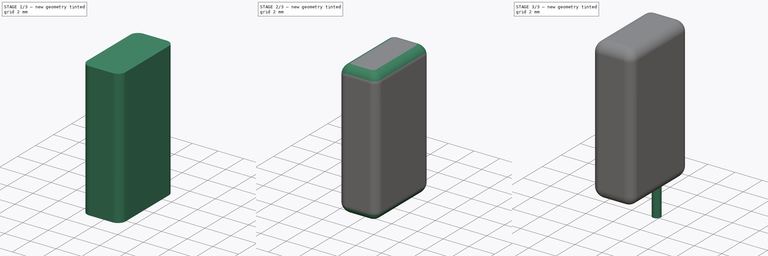
[diagram: build sequence overview — one tinted view per stage of 3, left to right]
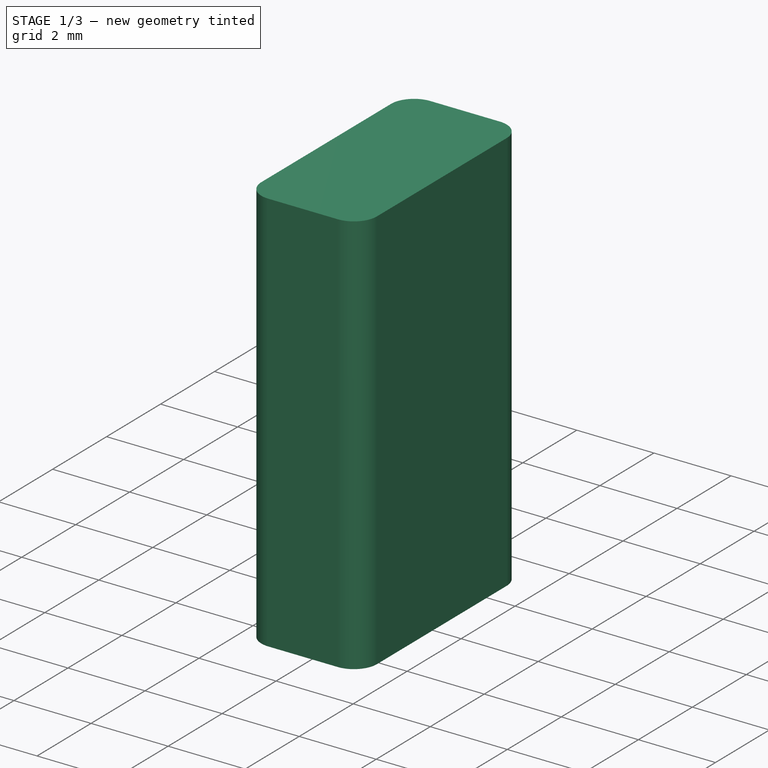
[diagram: stage 1 of 3 — iso view after this stage's code; geometry added in this stage tinted green]
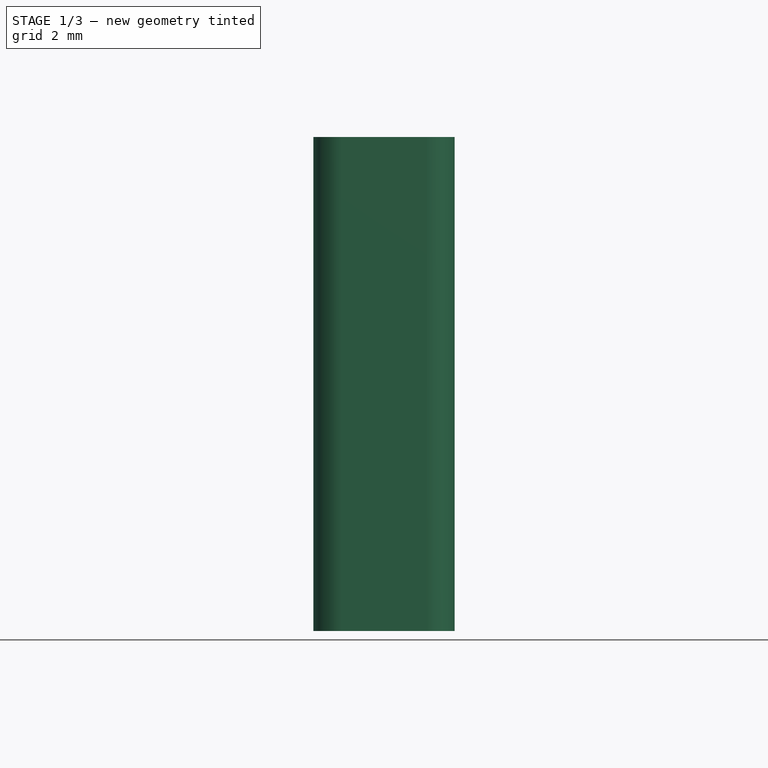
[diagram: stage 1 of 3 — front view after this stage's code; geometry added in this stage tinted green]
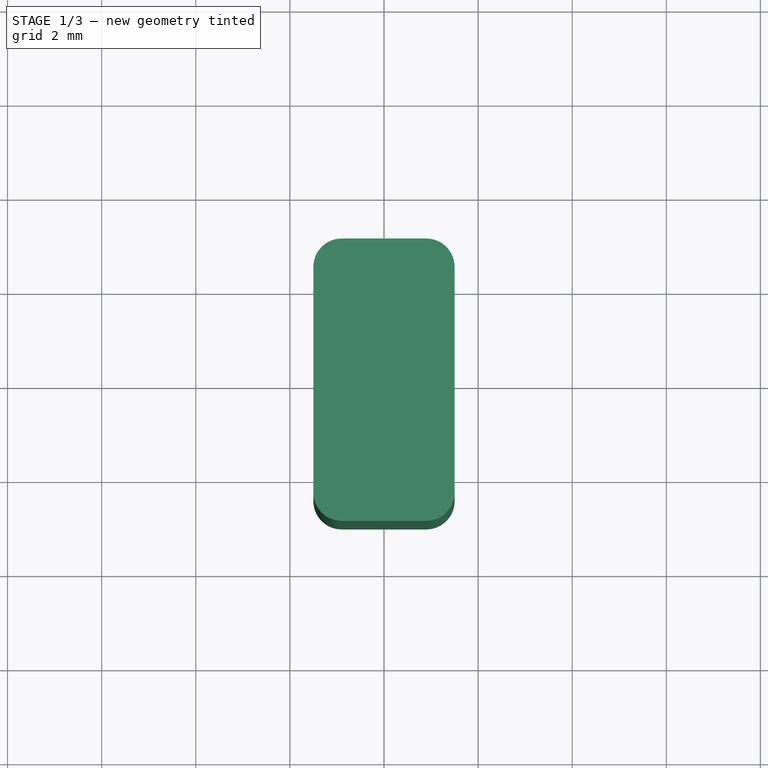
[diagram: stage 1 of 3 — top view after this stage's code; geometry added in this stage tinted green]
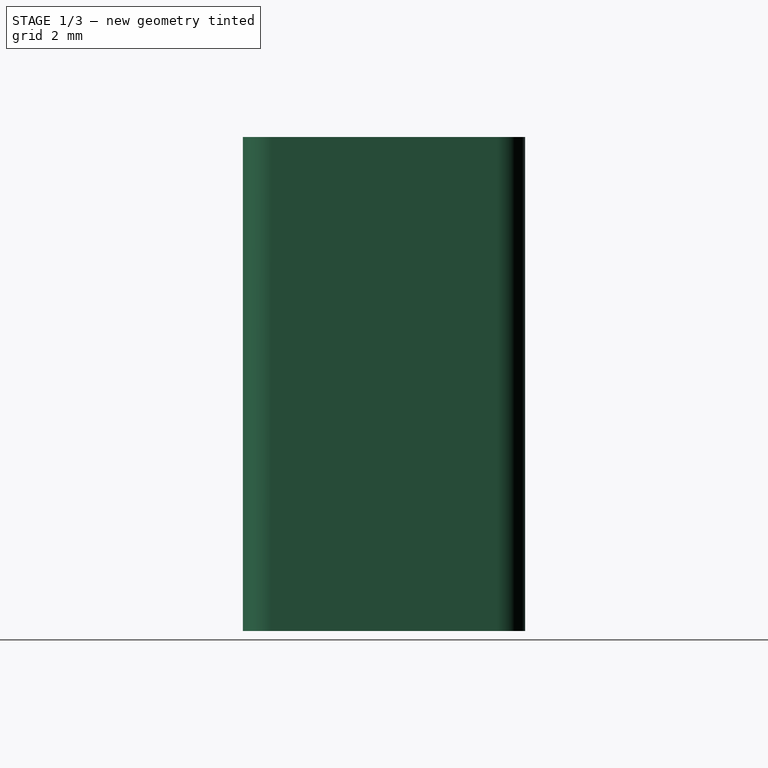
[diagram: stage 1 of 3 — right view after this stage's code; geometry added in this stage tinted green]
FCSTD DOCUMENT  (FreeCAD 0.19R16945 (Git))
Label: Greenie Capacitors
License: All rights reserved
LicenseURL: http://en.wikipedia.org/wiki/All_rights_reserved
objects: PartDesign::Body×3, Sketcher::SketchObject×2, PartDesign::Pad×2, PartDesign::Fillet×2, PartDesign::FeatureBase×1, Spreadsheet::Sheet×1
note: 12 computed .brp shape members not serialized (recipe doc carries the construction recipe); baked Part::Feature solids carry a one-line shape summary decoded from their .brp

FEATURE [Sketcher::SketchObject] Sketch
  MapMode = 5
  Placement = pos=(0,0,0) rot=(0.57735,0.57735,0.57735;2.0944rad)
  Support = -> [YZ_Plane]
  expr: Constraints[10] = Spreadsheet.height
  expr: Constraints[9] = Spreadsheet.width
  sketch-geometry (4):
    g0: LineSegment StartX=-3 StartY=0 StartZ=0 EndX=3 EndY=2e-16 EndZ=0
    g1: LineSegment StartX=3 StartY=2e-16 StartZ=0 EndX=3 EndY=10.5 EndZ=0
    g2: LineSegment StartX=3 StartY=10.5 StartZ=0 EndX=-3 EndY=10.5 EndZ=0
    g3: LineSegment StartX=-3 StartY=10.5 StartZ=0 EndX=-3 EndY=0 EndZ=0
  constraints (11):
    c: Coincident(g0,g1)
    c: Coincident(g1,g2)
    c: Coincident(g2,g3)
    c: Coincident(g3,g0)
    c: Horizontal(g2)
    c: Vertical(g1)
    c: Vertical(g3)
    c: PointOnObject(g0,g-1)
    c: Symmetric(g0,g0,g-2)
    c: DistanceX(g2,g2) = 6
    c: DistanceY(g1,g1) = 10.5
FEATURE [PartDesign::Pad] Pad
  Length = 3
  Length2 = 100
  Midplane = true
  Placement = pos=(0,0,0) rot=(0.57735,0.57735,0.57735;2.0944rad)
  Profile = -> Sketch
  Type = 0
  expr: Length = Spreadsheet.thickness
FEATURE [PartDesign::Fillet] Fillet
  Base = -> Pad [Edge6,Edge11,Edge7,Edge12]
  BaseFeature = -> Pad
  Placement = pos=(0,0,0) rot=(0.57735,0.57735,0.57735;2.0944rad)
  Radius = 0.6
  expr: Radius = Spreadsheet.filletw
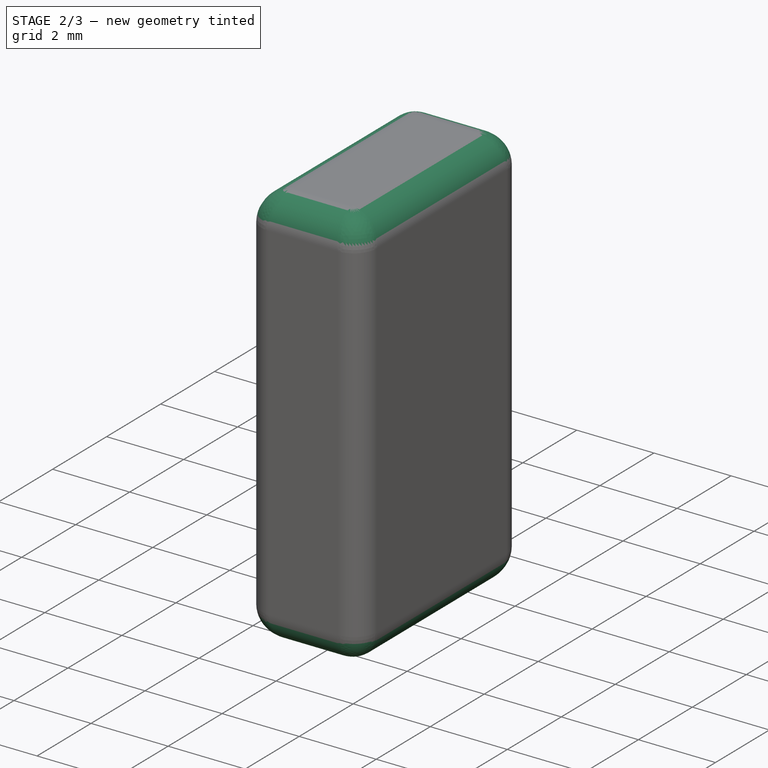
[diagram: stage 2 of 3 — iso view after this stage's code; geometry added in this stage tinted green]
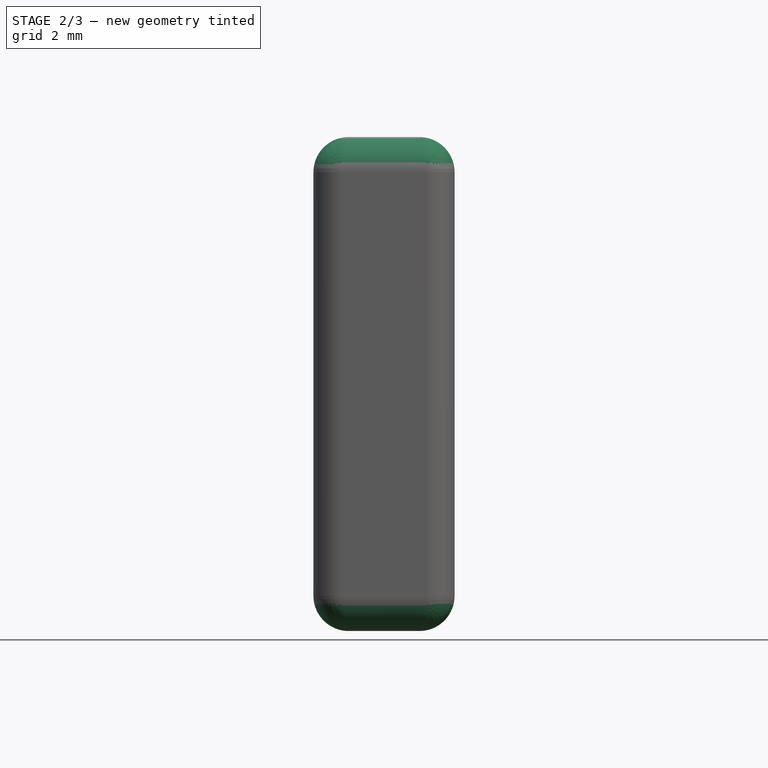
[diagram: stage 2 of 3 — front view after this stage's code; geometry added in this stage tinted green]
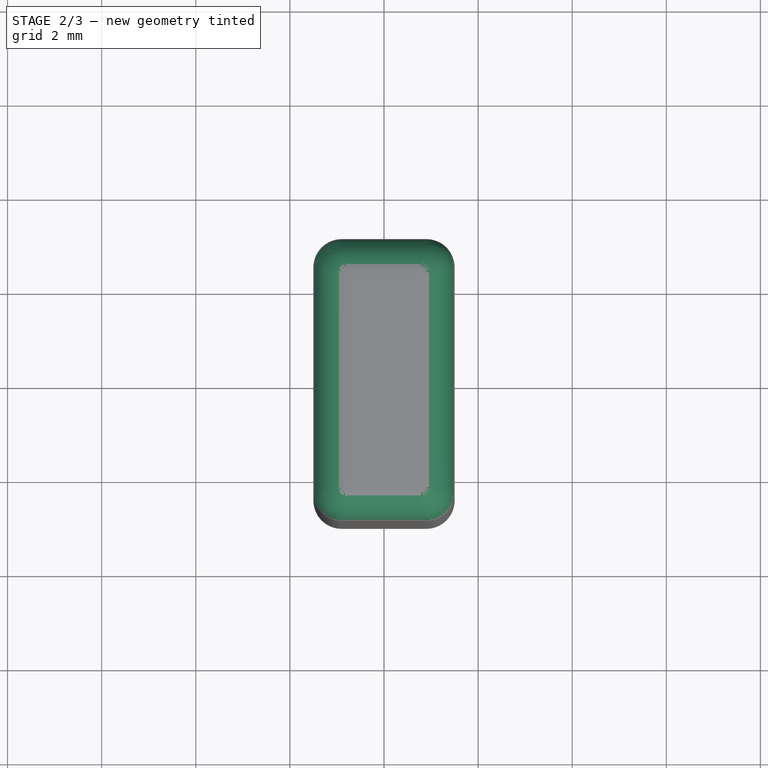
[diagram: stage 2 of 3 — top view after this stage's code; geometry added in this stage tinted green]
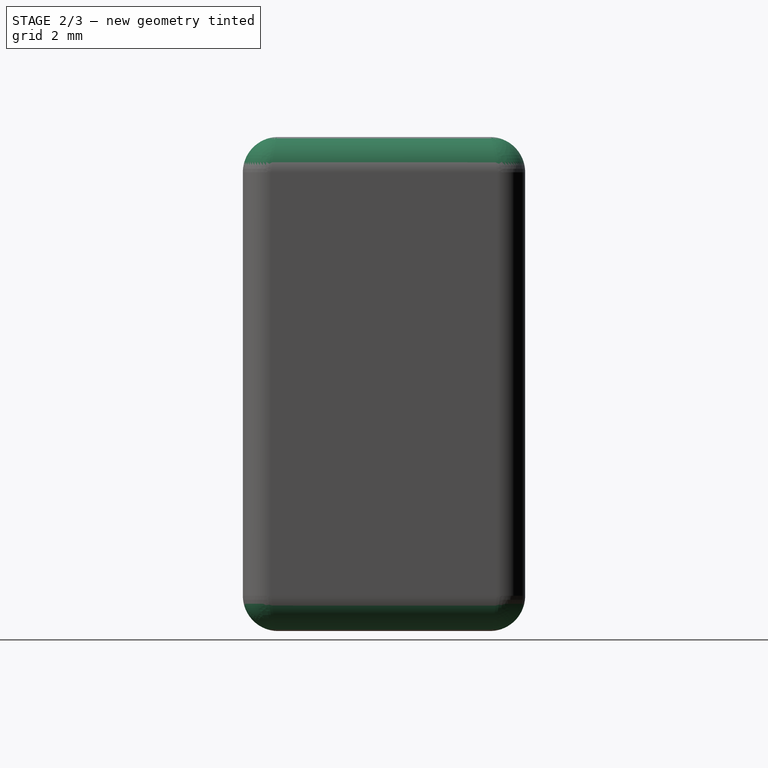
[diagram: stage 2 of 3 — right view after this stage's code; geometry added in this stage tinted green]
FEATURE [PartDesign::Body] Body002  label="LeadClone"
  Group = -> [Clone]
  Origin = -> Origin002
  Placement = pos=(0,-3.5,0) rot=(0,0,1;0rad)
  Tip = -> Clone
  expr: Placement.Base.y = -Spreadsheet.pitch
FEATURE [Spreadsheet::Sheet] Spreadsheet
  cells = A2=width; B2(width)==6mm; D2=banzai sizes; A3=thickness; B3(thickness)==3mm; A4=height; B4(height)==10.5mm; D4=6 3 10.5 3.5; A5=pitch; B5(pitch)==3.5mm; D5=6.5 3.5 12 3.5; A6=leaddiameter; B6(leaddiameter)==0.6mm; D6=7 3.5 12 4; A7=leadlength; B7(leadlength)==2.6mm; D7=7 4 12 4; D8=7.5 4 12 4; A9=fillett; B9(fillett)==B3 * 0.25; D9=8 5 12 5; A10=filletw; B10(filletw)==B2 * 0.1; D10=8.5 5 13 5; D11=9 5 13 5; D12=9.5 5 13 7.5; D13=10 6 13 7.5; D14=11 6 14 7.5; D15=12 7 17 9; D16=13 7.5 17 9; D17=14.5 8.5 21 10; D18=15 9 21 10; D19=16 9 22 10
FEATURE [PartDesign::Fillet] Fillet001
  Base = -> Fillet [Edge24,Edge23,Edge19,Edge14,Edge9,Edge12,Edge17,Edge21,Edge4,Edge2,Edge1,Edge3,Edge5,Edge7,Edge8,Edge6]
  BaseFeature = -> Fillet
  Placement = pos=(0,0,0) rot=(0.57735,0.57735,0.57735;2.0944rad)
  Radius = 0.75
  expr: Radius = Spreadsheet.fillett
FEATURE [PartDesign::Body] Body
  Group = -> [Sketch,Pad,Fillet,Fillet001]
  Origin = -> Origin
  Tip = -> Fillet001
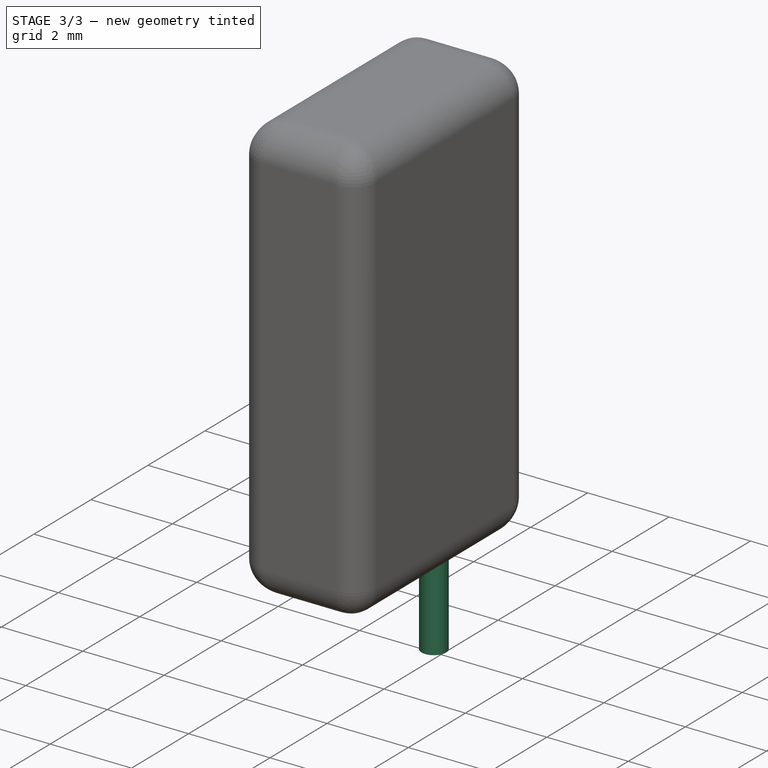
[diagram: stage 3 of 3 — iso view after this stage's code; geometry added in this stage tinted green]
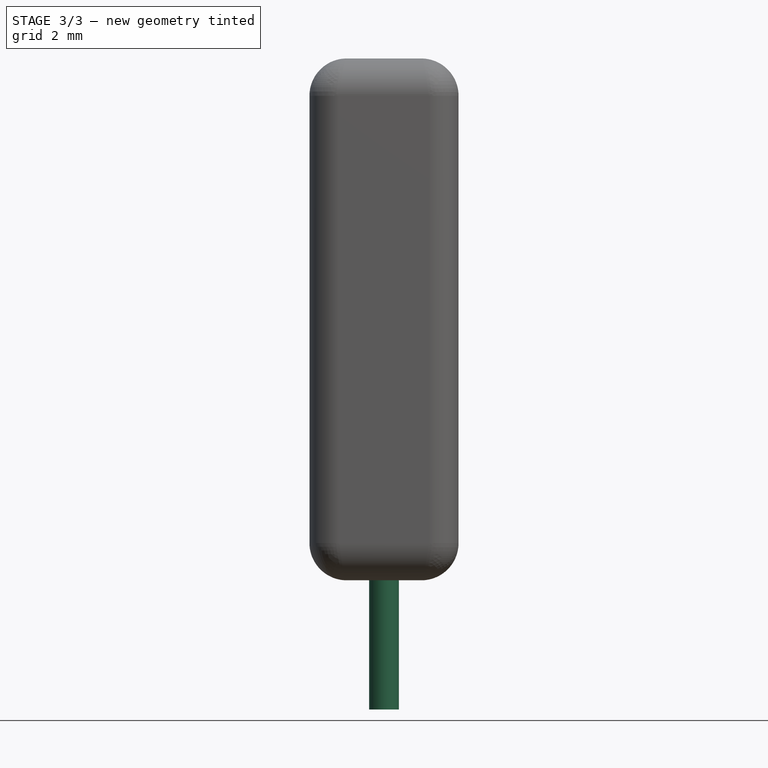
[diagram: stage 3 of 3 — front view after this stage's code; geometry added in this stage tinted green]
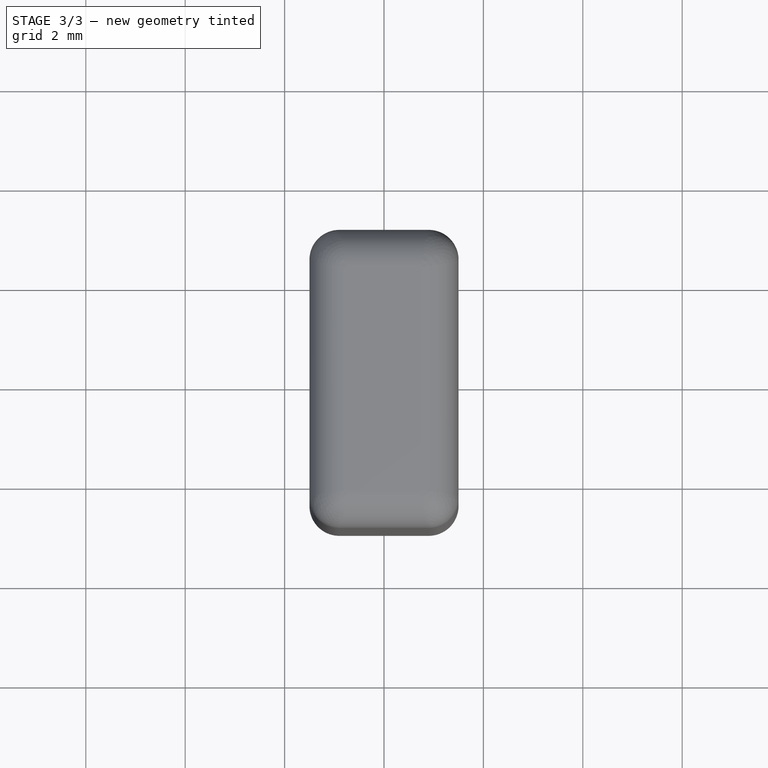
[diagram: stage 3 of 3 — top view after this stage's code; geometry added in this stage tinted green]
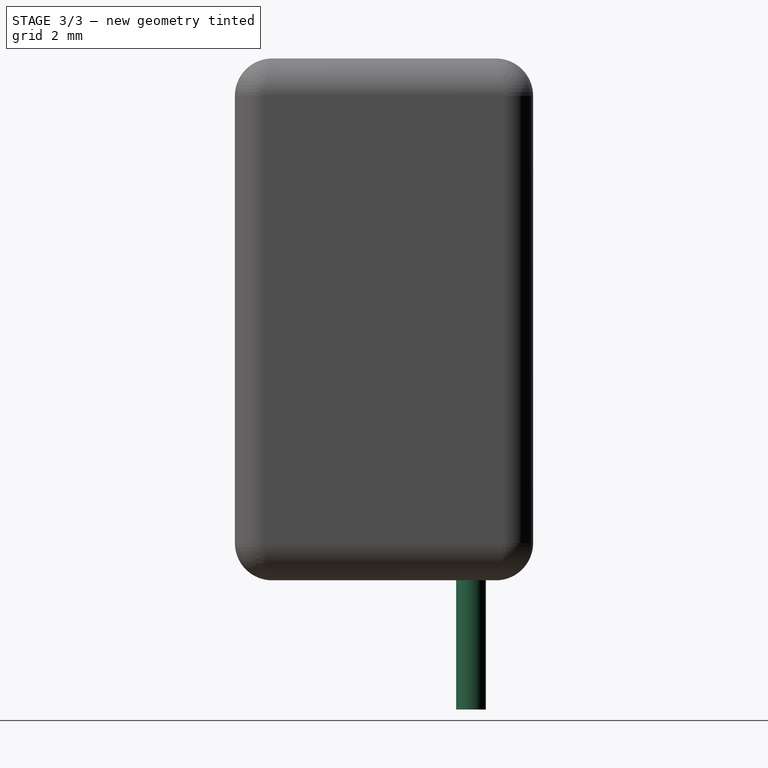
[diagram: stage 3 of 3 — right view after this stage's code; geometry added in this stage tinted green]
FEATURE [Sketcher::SketchObject] Sketch001
  AttachmentOffset = pos=(0,1.75,0) rot=(0,0,1;0rad)
  MapMode = 5
  Placement = pos=(0,1.75,0) rot=(0,0,1;0rad)
  Support = -> [XY_Plane001]
  expr: Constraints[1] = Spreadsheet.leaddiameter / 2
  expr: AttachmentOffset.Base.y = Spreadsheet.pitch / 2
  sketch-geometry (1):
    g0: Circle CenterX=0 CenterY=0 CenterZ=0 NormalX=0 NormalY=0 NormalZ=1 AngleXU=0 Radius=0.3
  constraints (2):
    c: Coincident(g0,g-1)
    c: Radius(g0) = 0.3
FEATURE [PartDesign::Pad] Pad001
  Length = 2.6
  Length2 = 100
  Profile = -> Sketch001
  Reversed = true
  Type = 0
  expr: Length = Spreadsheet.leadlength
FEATURE [PartDesign::Body] Body001  label="Lead"
  Group = -> [Sketch001,Pad001]
  Origin = -> Origin001
  Tip = -> Pad001
FEATURE [PartDesign::FeatureBase] Clone
  BaseFeature = -> Body001
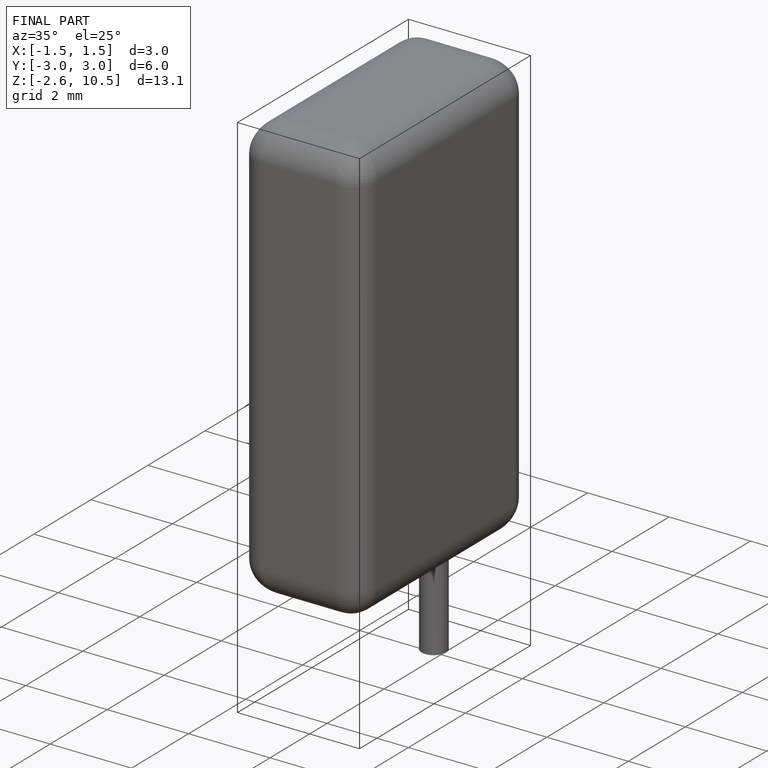
[diagram: finished part — iso view with bounding-box wireframe]
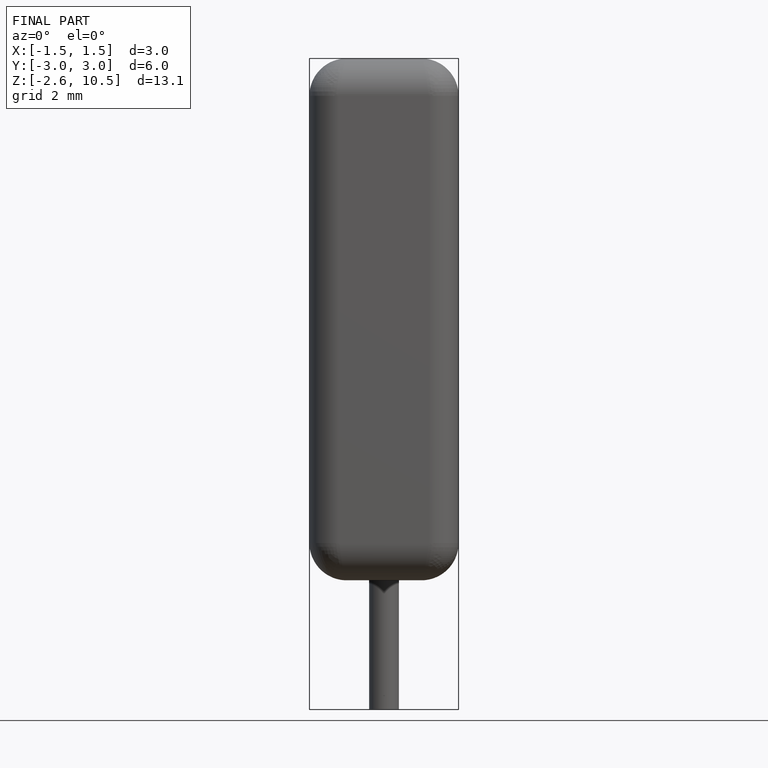
[diagram: finished part — front view with bounding-box wireframe]
